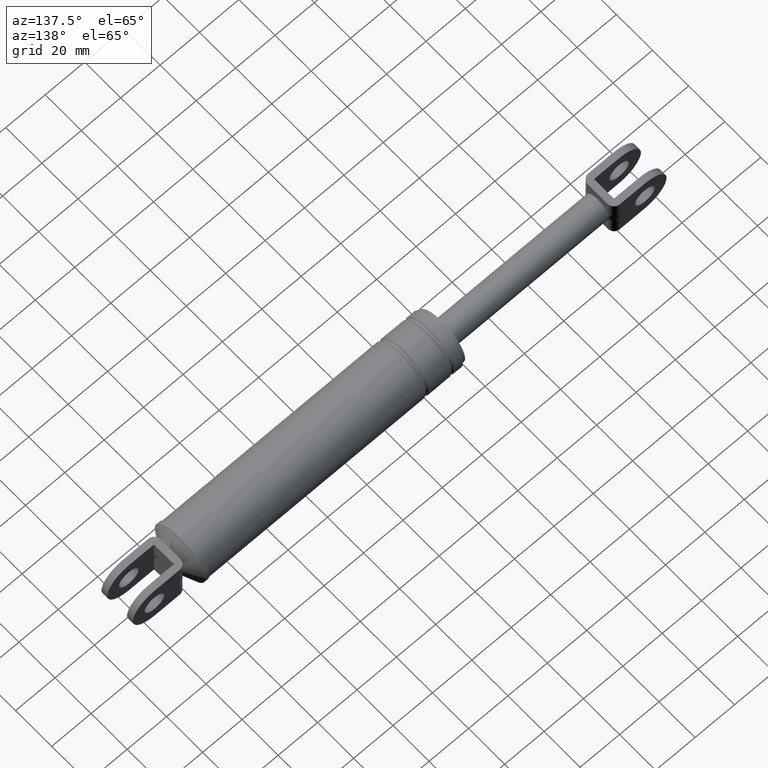
[diagram: clean part render]
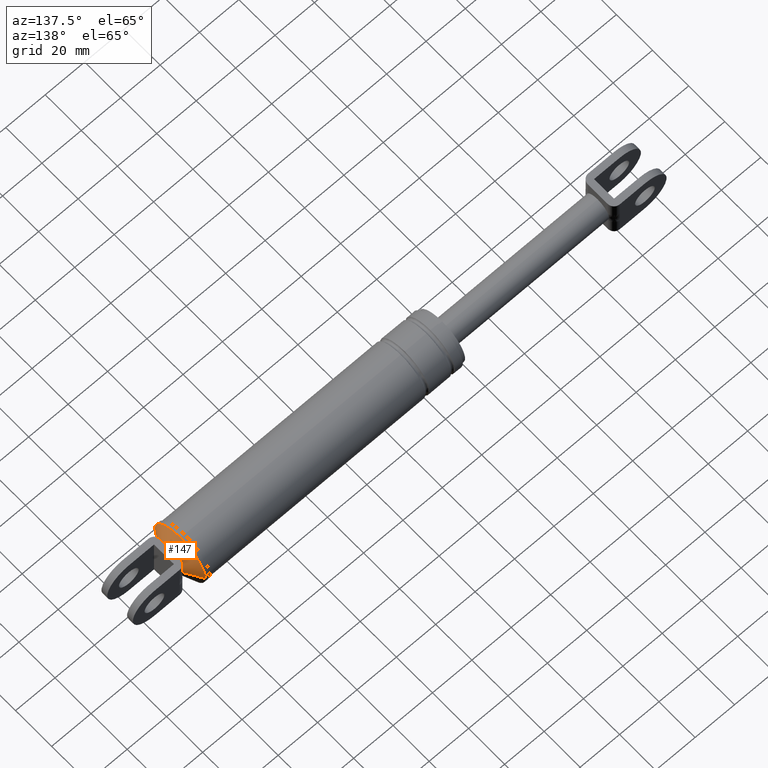
[diagram: same view with one face highlighted and labeled with its STEP entity id]
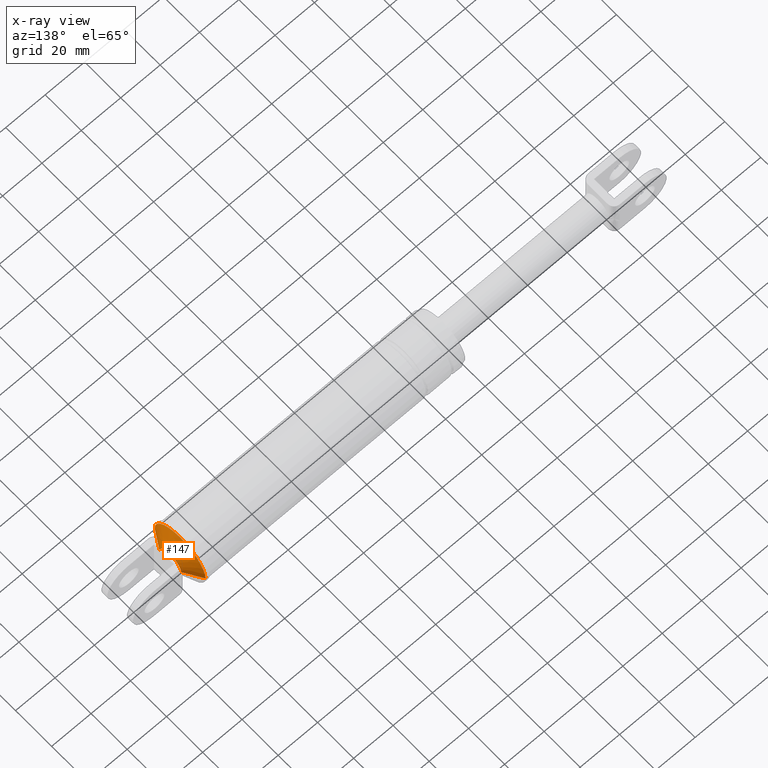
[diagram: x-ray of the same camera — body ghosted, the highlighted face saturated]
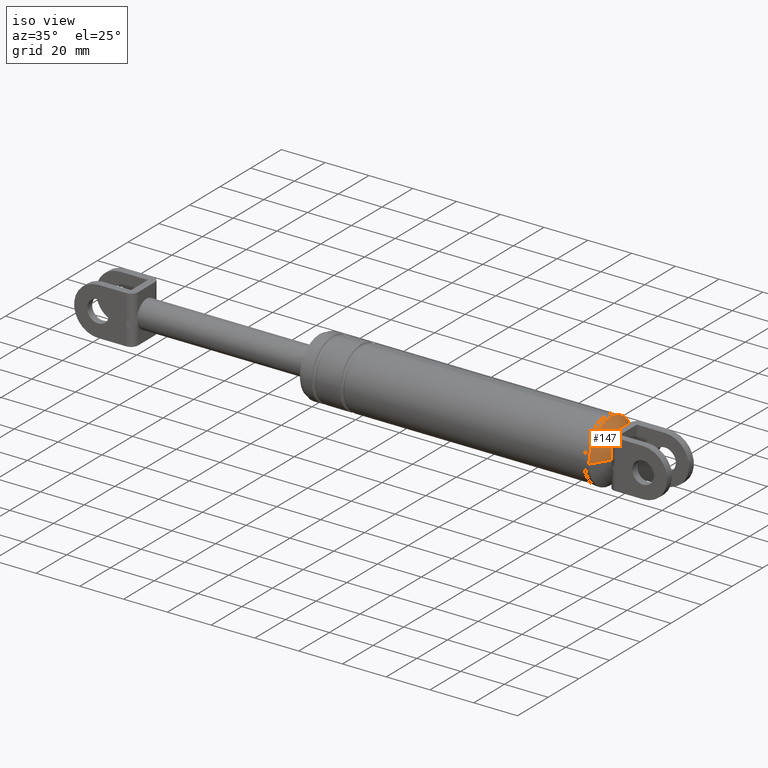
[diagram: same view with one face highlighted and labeled with its STEP entity id]
A machine part, auxiliary view. The second image highlights one B-rep face of the part: STEP entity #147.
The next image is the same camera in x-ray: the body ghosted, the highlighted face saturated — about 0% of this face is hidden behind the body in this view.
A second angle (iso view) of the same face is appended — the face is thin or edge-on in the first view.
In plain terms, the highlighted face is a freeform B-spline surface patch.
Its self-contained STEP definition (entity closure, byte-faithful):
#147=ADVANCED_FACE('',(#533),#532,.T.);
#532=( BOUNDED_SURFACE() B_SPLINE_SURFACE( 2,1,((#1169,#1170),(#1171,#1172),(#1173,#1174),(#1175,#1176),(#1177,#1178)), .UNSPECIFIED.,.F.,.F.,.F.) B_SPLINE_SURFACE_WITH_KNOTS((3,2,3),(2,2),(0.00000000000E+000,5.00000000000E-001,1.00000000000E+000),(0.00000000000E+000,1.00000000000E+000), .UNSPECIFIED. ) GEOMETRIC_REPRESENTATION_ITEM() RATIONAL_B_SPLINE_SURFACE(((1.00000000000E+000,1.00000000000E+000),(7.07106781187E-001,7.07106781187E-001),(1.00000000000E+000,1.00000000000E+000),(7.07106781187E-001,7.07106781187E-001),(1.00000000000E+000,1.00000000000E+000))) REPRESENTATION_ITEM('') SURFACE() );
#533=FACE_OUTER_BOUND('',#1179,.T.);
#1169=CARTESIAN_POINT('',(3.25150646490E+002,0.00000000000E+000,1.70729320502E+002));
#1170=CARTESIAN_POINT('',(3.12841750670E+002,-1.99404112295E+001,1.70729320502E+002));
#1171=CARTESIAN_POINT('',(3.25150646490E+002,0.00000000000E+000,1.70729320502E+002));
#1172=CARTESIAN_POINT('',(3.12841750670E+002,-1.99404112295E+001,1.90669731732E+002));
#1173=CARTESIAN_POINT('',(3.25150646490E+002,0.00000000000E+000,1.70729320502E+002));
#1174=CARTESIAN_POINT('',(3.12841750670E+002,5.56224208215E-014,1.90669731732E+002));
#1175=CARTESIAN_POINT('',(3.25150646490E+002,0.00000000000E+000,1.70729320502E+002));
#1176=CARTESIAN_POINT('',(3.12841750670E+002,1.99404112295E+001,1.90669731732E+002));
#1177=CARTESIAN_POINT('',(3.25150646490E+002,0.00000000000E+000,1.70729320502E+002));
#1178=CARTESIAN_POINT('',(3.12841750670E+002,1.99404112295E+001,1.70729320502E+002));
#1179=EDGE_LOOP('',(#1551,#1552,#1553,#1554,#1555,#1556,#1557));
#1551=ORIENTED_EDGE('',*,*,#1715,.T.);
#1552=ORIENTED_EDGE('',*,*,#1723,.T.);
#1553=ORIENTED_EDGE('',*,*,#1702,.T.);
#1554=ORIENTED_EDGE('',*,*,#1794,.T.);
#1555=ORIENTED_EDGE('',*,*,#1788,.F.);
#1556=ORIENTED_EDGE('',*,*,#1793,.F.);
#1557=ORIENTED_EDGE('',*,*,#1795,.F.);
#1702=EDGE_CURVE('',#1877,#1870,#1878,.T.);
#1715=EDGE_CURVE('',#1967,#1960,#1968,.T.);
#1723=EDGE_CURVE('',#1960,#1877,#2019,.T.);
#1788=EDGE_CURVE('',#2450,#2451,#2452,.T.);
#1793=EDGE_CURVE('',#2477,#2450,#2484,.T.);
#1794=EDGE_CURVE('',#1870,#2451,#2490,.T.);
#1795=EDGE_CURVE('',#1967,#2477,#2496,.T.);
#1870=VERTEX_POINT('',#2944);
#1877=VERTEX_POINT('',#2949);
#1878=CIRCLE('',#2953,6.00000000000E+000);
#1960=VERTEX_POINT('',#3016);
#1967=VERTEX_POINT('',#3021);
#1968=CIRCLE('',#3025,6.00000000000E+000);
#2019=CIRCLE('',#3056,6.00000000000E+000);
#2450=VERTEX_POINT('',#3326);
#2451=VERTEX_POINT('',#3327);
#2452=CIRCLE('',#3331,1.41000000000E+001);
#2477=VERTEX_POINT('',#3341);
#2484=CIRCLE('',#3349,1.41000000000E+001);
#2490=(BOUNDED_CURVE() B_SPLINE_CURVE(1,(#3350,#3351),.UNSPECIFIED.,.F.,.F.) B_SPLINE_CURVE_WITH_KNOTS((2,2),(3.00896503032E-001,7.07106781040E-001),.UNSPECIFIED.) CURVE() GEOMETRIC_REPRESENTATION_ITEM() RATIONAL_B_SPLINE_CURVE((1.00000000000E+000,1.00000000000E+000)) REPRESENTATION_ITEM('') );
#2496=(BOUNDED_CURVE() B_SPLINE_CURVE(1,(#3352,#3353),.UNSPECIFIED.,.F.,.F.) B_SPLINE_CURVE_WITH_KNOTS((2,2),(3.00896477214E-001,7.07106774588E-001),.UNSPECIFIED.) CURVE() GEOMETRIC_REPRESENTATION_ITEM() RATIONAL_B_SPLINE_CURVE((7.50000000000E-001,7.50000000000E-001)) REPRESENTATION_ITEM('') );
#2944=CARTESIAN_POINT('',(3.21446942787E+002,6.00000000000E+000,1.70729320502E+002));
#2949=CARTESIAN_POINT('',(3.21446942787E+002,5.49999700000E+000,1.73127243145E+002));
#2950=CARTESIAN_POINT('',(3.21446942787E+002,0.00000000000E+000,1.70729320502E+002));
#2951=DIRECTION('',(-1.00000000000E+000,0.00000000000E+000,0.00000000000E+000));
#2952=DIRECTION('',(-0.00000000000E+000,-0.00000000000E+000,-1.00000000000E+000));
#2953=AXIS2_PLACEMENT_3D('',#2950,#2951,#2952);
#3016=CARTESIAN_POINT('',(3.21446942787E+002,-5.49999700000E+000,1.73127243145E+002));
#3021=CARTESIAN_POINT('',(3.21446942787E+002,-6.00000000000E+000,1.70729320527E+002));
#3022=CARTESIAN_POINT('',(3.21446942787E+002,0.00000000000E+000,1.70729320502E+002));
#3023=DIRECTION('',(-1.00000000000E+000,0.00000000000E+000,0.00000000000E+000));
#3024=DIRECTION('',(-0.00000000000E+000,-0.00000000000E+000,-1.00000000000E+000));
#3025=AXIS2_PLACEMENT_3D('',#3022,#3023,#3024);
#3053=CARTESIAN_POINT('',(3.21446942787E+002,0.00000000000E+000,1.70729320502E+002));
#3054=DIRECTION('',(-1.00000000000E+000,0.00000000000E+000,0.00000000000E+000));
#3055=DIRECTION('',(-0.00000000000E+000,-0.00000000000E+000,-1.00000000000E+000));
#3056=AXIS2_PLACEMENT_3D('',#3053,#3054,#3055);
#3326=CARTESIAN_POINT('',(3.16446942787E+002,0.00000000000E+000,1.84829320502E+002));
#3327=CARTESIAN_POINT('',(3.16446942787E+002,1.41000000000E+001,1.70729320502E+002));
#3328=CARTESIAN_POINT('',(3.16446942787E+002,0.00000000000E+000,1.70729320502E+002));
#3329=DIRECTION('',(-1.00000000000E+000,0.00000000000E+000,0.00000000000E+000));
#3330=DIRECTION('',(0.00000000000E+000,-1.22460635382E-016,1.00000000000E+000));
#3331=AXIS2_PLACEMENT_3D('',#3328,#3329,#3330);
#3341=CARTESIAN_POINT('',(3.16446942787E+002,-1.41000000000E+001,1.70729320500E+002));
#3346=CARTESIAN_POINT('',(3.16446942787E+002,0.00000000000E+000,1.70729320502E+002));
#3347=DIRECTION('',(-1.00000000000E+000,0.00000000000E+000,0.00000000000E+000));
#3348=DIRECTION('',(0.00000000000E+000,-1.22460635382E-016,1.00000000000E+000));
#3349=AXIS2_PLACEMENT_3D('',#3346,#3347,#3348);
#3350=CARTESIAN_POINT('',(3.21446942782E+002,6.00000000797E+000,1.70729320502E+002));
#3351=CARTESIAN_POINT('',(3.16446942789E+002,1.40999999971E+001,1.70729320502E+002));
#3352=CARTESIAN_POINT('',(3.21446943100E+002,-5.99999949314E+000,1.70729320502E+002));
#3353=CARTESIAN_POINT('',(3.16446942868E+002,-1.40999998684E+001,1.70729320502E+002));